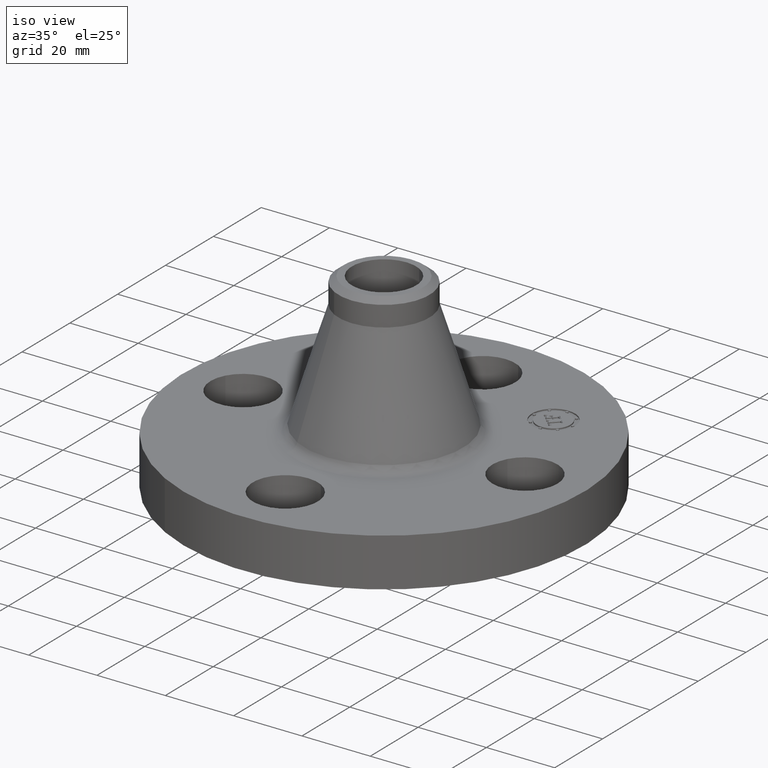
[diagram: clean part render]
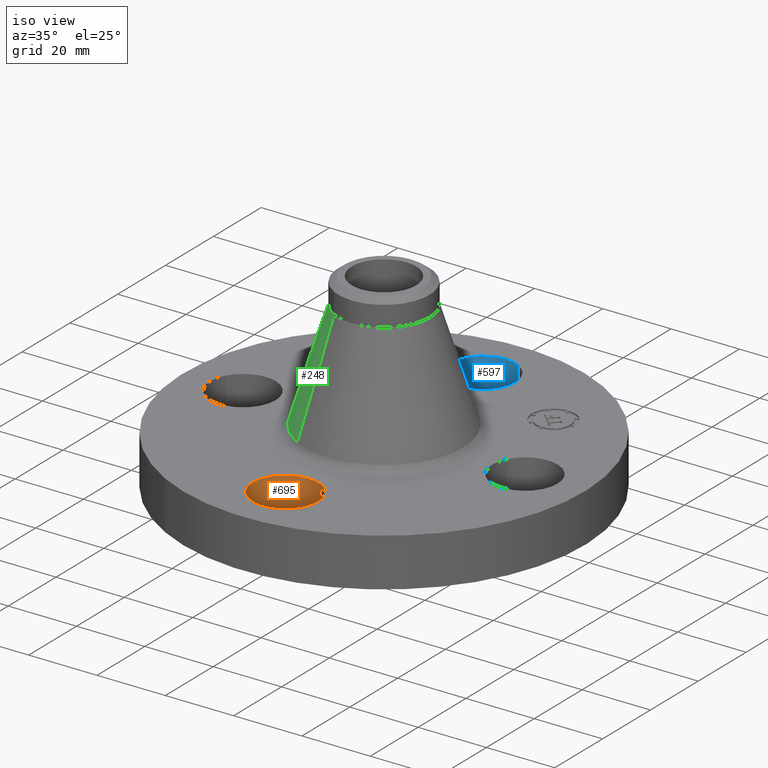
[diagram: same view with three faces highlighted in distinct colors, each labeled with its STEP entity id]
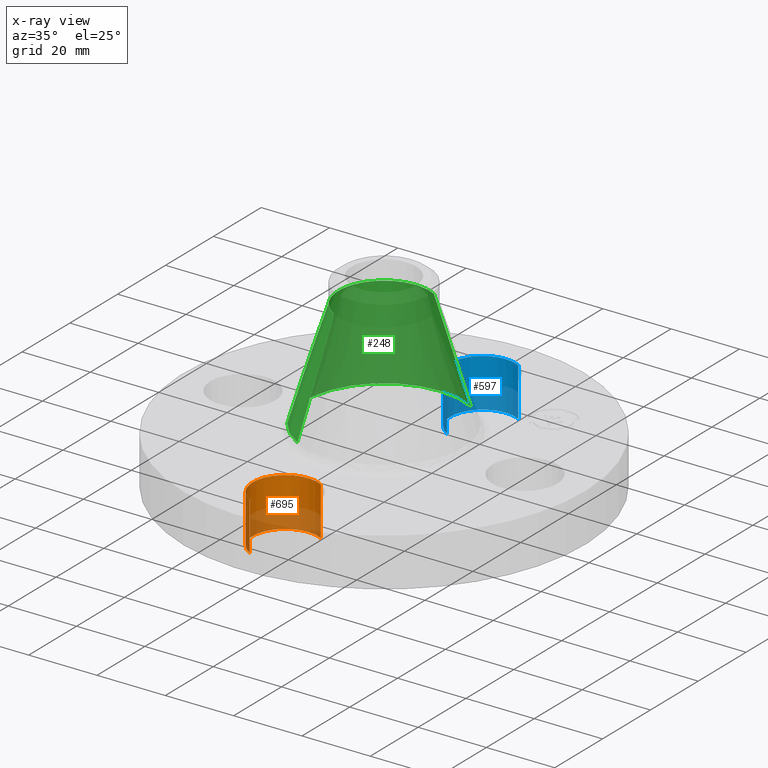
[diagram: x-ray of the same camera — body ghosted, the three highlighted faces saturated]
A machine part, iso view with three faces highlighted in distinct colors.
The next image is the same camera in x-ray (body ghosted, the three faces saturated) — at least one of them is partly hidden behind the body in this view.
Their STEP definitions:

[orange] entity #695 — the highlighted cylindrical surface (partial cylindrical patch) has radius 9.525 mm, axis along (0, -0, -1).
#523=AXIS2_PLACEMENT_3D('Circle Axis2P3D',#521,#522,$) ;
#656=AXIS2_PLACEMENT_3D('Cylinder Axis2P3D',#653,#654,#655) ;
#686=AXIS2_PLACEMENT_3D('Circle Axis2P3D',#684,#685,$) ;
#516=CARTESIAN_POINT('Vertex',(0.179784576977,-1.2959065393,0.)) ;
#518=CARTESIAN_POINT('Vertex',(-0.179784576977,-1.95409346072,6.99353086378E-017)) ;
#521=CARTESIAN_POINT('Axis2P3D Location',(-2.79741234551E-016,-1.62500000001,0.)) ;
#653=CARTESIAN_POINT('Axis2P3D Location',(-1.8023868212E-016,-1.62500000001,0.556062992128)) ;
#658=CARTESIAN_POINT('Line Origine',(0.179784576977,-1.2959065393,0.280000000001)) ;
#662=CARTESIAN_POINT('Vertex',(0.179784576977,-1.2959065393,0.560000000002)) ;
#665=CARTESIAN_POINT('Line Origine',(-0.179784576977,-1.95409346072,0.280000000001)) ;
#669=CARTESIAN_POINT('Vertex',(-0.179784576977,-1.95409346072,0.560000000002)) ;
#684=CARTESIAN_POINT('Axis2P3D Location',(-1.8023868212E-016,-1.62500000001,0.560000000002)) ;
#522=DIRECTION('Axis2P3D Direction',(0.,0.,-0.0393700787402)) ;
#654=DIRECTION('Axis2P3D Direction',(0.,-0.,-0.0393700787402)) ;
#655=DIRECTION('Axis2P3D XDirection',(-0.0188750212049,-0.0345504945626,0.)) ;
#659=DIRECTION('Vector Direction',(0.,0.,-0.0393700787402)) ;
#666=DIRECTION('Vector Direction',(0.,0.,-0.0393700787402)) ;
#685=DIRECTION('Axis2P3D Direction',(0.,-0.,-0.0393700787402)) ;
#660=VECTOR('Line Direction',#659,0.0393700787402) ;
#667=VECTOR('Line Direction',#666,0.0393700787402) ;
#690=ORIENTED_EDGE('',*,*,#671,.F.) ;
#691=ORIENTED_EDGE('',*,*,#525,.T.) ;
#692=ORIENTED_EDGE('',*,*,#664,.T.) ;
#693=ORIENTED_EDGE('',*,*,#688,.F.) ;
#695=ADVANCED_FACE('PartBody',(#694),#657,.F.) ;
#524=CIRCLE('generated circle',#523,0.375000000001) ;
#687=CIRCLE('generated circle',#686,0.375000000001) ;
#657=CYLINDRICAL_SURFACE('generated cylinder',#656,0.375000000001) ;
#525=EDGE_CURVE('',#519,#517,#524,.T.) ;
#664=EDGE_CURVE('',#517,#663,#661,.F.) ;
#671=EDGE_CURVE('',#519,#670,#668,.F.) ;
#688=EDGE_CURVE('',#670,#663,#687,.T.) ;
#689=EDGE_LOOP('',(#690,#691,#692,#693)) ;
#694=FACE_OUTER_BOUND('',#689,.T.) ;
#661=LINE('Line',#658,#660) ;
#668=LINE('Line',#665,#667) ;
#517=VERTEX_POINT('',#516) ;
#519=VERTEX_POINT('',#518) ;
#663=VERTEX_POINT('',#662) ;
#670=VERTEX_POINT('',#669) ;

[blue] entity #597 — the highlighted cylindrical surface (partial cylindrical patch) has radius 9.525 mm, axis along (0, 0, -1).
#550=AXIS2_PLACEMENT_3D('Circle Axis2P3D',#548,#549,$) ;
#570=AXIS2_PLACEMENT_3D('Cylinder Axis2P3D',#567,#568,#569) ;
#588=AXIS2_PLACEMENT_3D('Circle Axis2P3D',#586,#587,$) ;
#548=CARTESIAN_POINT('Axis2P3D Location',(-3.1470888887E-016,1.62500000001,0.)) ;
#552=CARTESIAN_POINT('Vertex',(-0.179784576977,1.2959065393,0.)) ;
#554=CARTESIAN_POINT('Vertex',(0.179784576977,1.95409346072,6.99353086378E-017)) ;
#567=CARTESIAN_POINT('Axis2P3D Location',(-2.98507657293E-016,1.62500000001,0.556062992128)) ;
#572=CARTESIAN_POINT('Line Origine',(-0.179784576977,1.2959065393,0.280000000001)) ;
#576=CARTESIAN_POINT('Vertex',(-0.179784576977,1.2959065393,0.560000000002)) ;
#579=CARTESIAN_POINT('Line Origine',(0.179784576977,1.95409346072,0.280000000001)) ;
#583=CARTESIAN_POINT('Vertex',(0.179784576977,1.95409346072,0.560000000002)) ;
#586=CARTESIAN_POINT('Axis2P3D Location',(-2.98507657293E-016,1.62500000001,0.560000000002)) ;
#549=DIRECTION('Axis2P3D Direction',(0.,0.,-0.0393700787402)) ;
#568=DIRECTION('Axis2P3D Direction',(0.,0.,-0.0393700787402)) ;
#569=DIRECTION('Axis2P3D XDirection',(0.0188750212049,0.0345504945626,0.)) ;
#573=DIRECTION('Vector Direction',(0.,0.,-0.0393700787402)) ;
#580=DIRECTION('Vector Direction',(0.,0.,-0.0393700787402)) ;
#587=DIRECTION('Axis2P3D Direction',(0.,0.,-0.0393700787402)) ;
#574=VECTOR('Line Direction',#573,0.0393700787402) ;
#581=VECTOR('Line Direction',#580,0.0393700787402) ;
#592=ORIENTED_EDGE('',*,*,#578,.F.) ;
#593=ORIENTED_EDGE('',*,*,#556,.T.) ;
#594=ORIENTED_EDGE('',*,*,#585,.T.) ;
#595=ORIENTED_EDGE('',*,*,#590,.F.) ;
#597=ADVANCED_FACE('PartBody',(#596),#571,.F.) ;
#551=CIRCLE('generated circle',#550,0.375000000001) ;
#589=CIRCLE('generated circle',#588,0.375000000001) ;
#571=CYLINDRICAL_SURFACE('generated cylinder',#570,0.375000000001) ;
#556=EDGE_CURVE('',#553,#555,#551,.T.) ;
#578=EDGE_CURVE('',#553,#577,#575,.F.) ;
#585=EDGE_CURVE('',#555,#584,#582,.F.) ;
#590=EDGE_CURVE('',#577,#584,#589,.T.) ;
#591=EDGE_LOOP('',(#592,#593,#594,#595)) ;
#596=FACE_OUTER_BOUND('',#591,.T.) ;
#575=LINE('Line',#572,#574) ;
#582=LINE('Line',#579,#581) ;
#553=VERTEX_POINT('',#552) ;
#555=VERTEX_POINT('',#554) ;
#577=VERTEX_POINT('',#576) ;
#584=VERTEX_POINT('',#583) ;

[green] entity #248 — the highlighted conical surface has half-angle 17.256 deg.
#196=AXIS2_PLACEMENT_3D('Circle Axis2P3D',#194,#195,$) ;
#209=AXIS2_PLACEMENT_3D('Cone Axis2P3D',#206,#207,#208) ;
#239=AXIS2_PLACEMENT_3D('Circle Axis2P3D',#237,#238,$) ;
#167=CARTESIAN_POINT('Vertex',(0.438090692598,0.801919633798,0.644403161618)) ;
#174=CARTESIAN_POINT('Vertex',(-0.438090692598,-0.801919633798,0.644403161618)) ;
#194=CARTESIAN_POINT('Axis2P3D Location',(0.,0.,0.644403161618)) ;
#206=CARTESIAN_POINT('Axis2P3D Location',(0.,0.,1.89603061929)) ;
#211=CARTESIAN_POINT('Line Origine',(0.344894550183,0.631325239396,1.27021689045)) ;
#215=CARTESIAN_POINT('Vertex',(0.251698407768,0.460730844994,1.89603061929)) ;
#222=CARTESIAN_POINT('Vertex',(-0.251698407768,-0.460730844994,1.89603061929)) ;
#225=CARTESIAN_POINT('Line Origine',(-0.344894550183,-0.631325239396,1.27021689045)) ;
#237=CARTESIAN_POINT('Axis2P3D Location',(0.,0.,1.89603061929)) ;
#195=DIRECTION('Axis2P3D Direction',(0.,0.,-0.0393700787402)) ;
#207=DIRECTION('Axis2P3D Direction',(0.,0.,-0.0393700787402)) ;
#208=DIRECTION('Axis2P3D XDirection',(-0.0188750212049,-0.0345504945626,0.)) ;
#212=DIRECTION('Vector Direction',(0.00559909232788,0.0102490697589,-0.0375980030612)) ;
#226=DIRECTION('Vector Direction',(-0.00559909232788,-0.0102490697589,-0.0375980030612)) ;
#238=DIRECTION('Axis2P3D Direction',(0.,0.,-0.0393700787402)) ;
#213=VECTOR('Line Direction',#212,0.0393700787402) ;
#227=VECTOR('Line Direction',#226,0.0393700787402) ;
#243=ORIENTED_EDGE('',*,*,#198,.F.) ;
#244=ORIENTED_EDGE('',*,*,#229,.T.) ;
#245=ORIENTED_EDGE('',*,*,#241,.T.) ;
#246=ORIENTED_EDGE('',*,*,#217,.F.) ;
#248=ADVANCED_FACE('PartBody',(#247),#210,.T.) ;
#197=CIRCLE('generated circle',#196,0.913782552915) ;
#240=CIRCLE('generated circle',#239,0.525000000002) ;
#210=CONICAL_SURFACE('Cone',#209,0.525000000002,0.301172693271) ;
#198=EDGE_CURVE('',#175,#168,#197,.T.) ;
#217=EDGE_CURVE('',#168,#216,#214,.F.) ;
#229=EDGE_CURVE('',#175,#223,#228,.F.) ;
#241=EDGE_CURVE('',#223,#216,#240,.T.) ;
#242=EDGE_LOOP('',(#243,#244,#245,#246)) ;
#247=FACE_OUTER_BOUND('',#242,.T.) ;
#214=LINE('Line',#211,#213) ;
#228=LINE('Line',#225,#227) ;
#168=VERTEX_POINT('',#167) ;
#175=VERTEX_POINT('',#174) ;
#216=VERTEX_POINT('',#215) ;
#223=VERTEX_POINT('',#222) ;